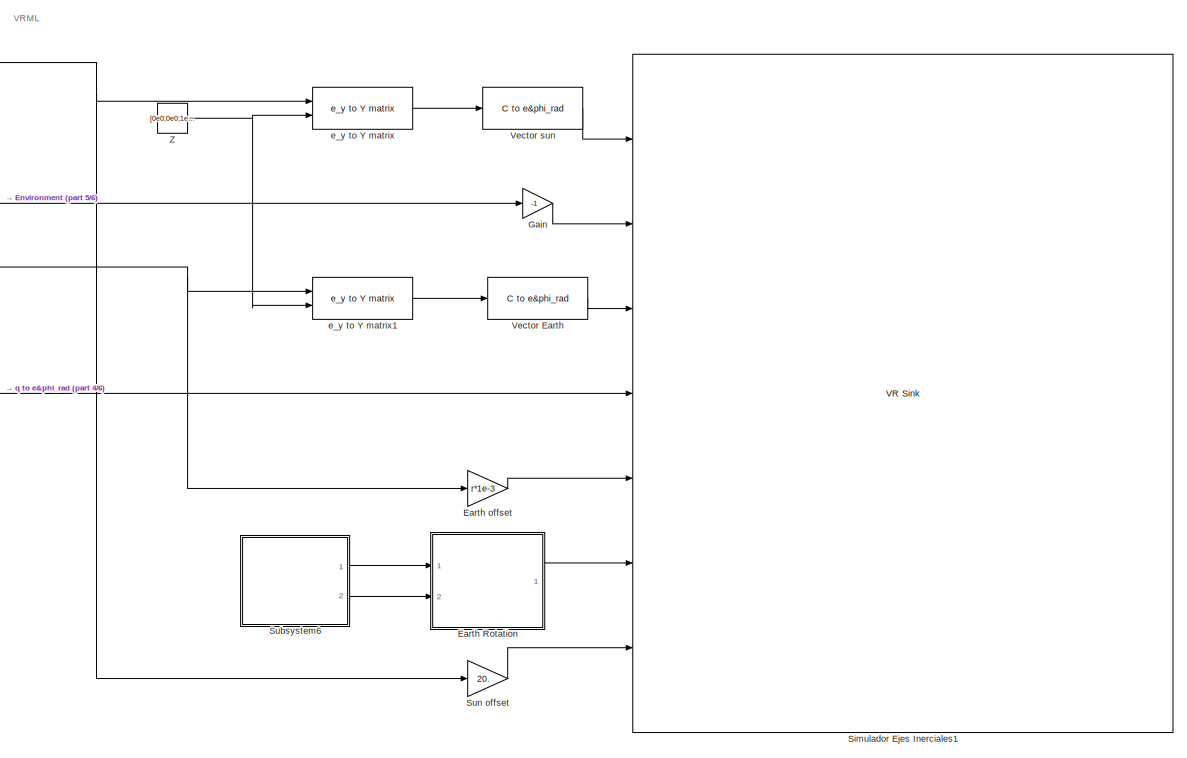
[diagram: root canvas - part 1/6, top right region]
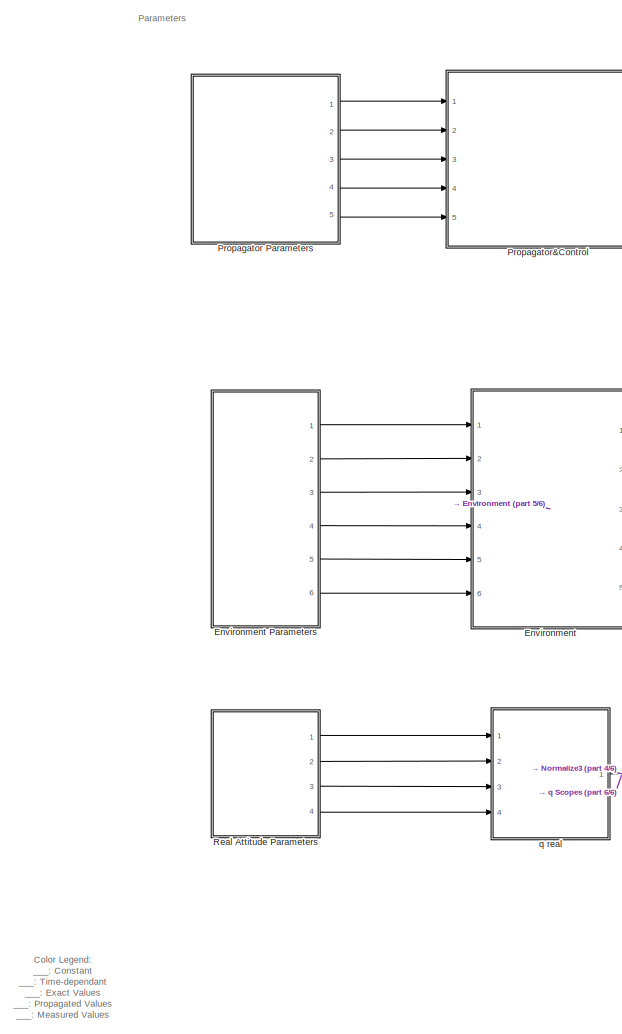
[diagram: root canvas - part 2/6, middle left region]
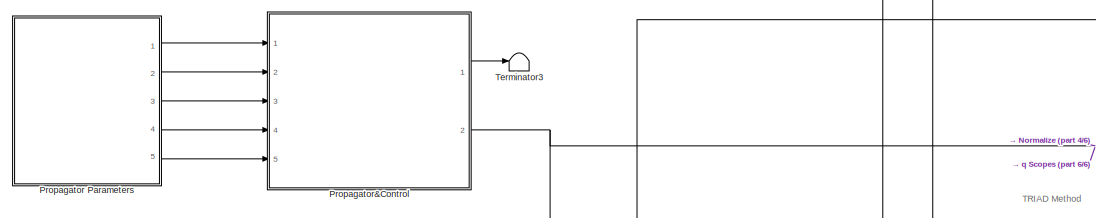
[diagram: root canvas - part 3/6, top left region]
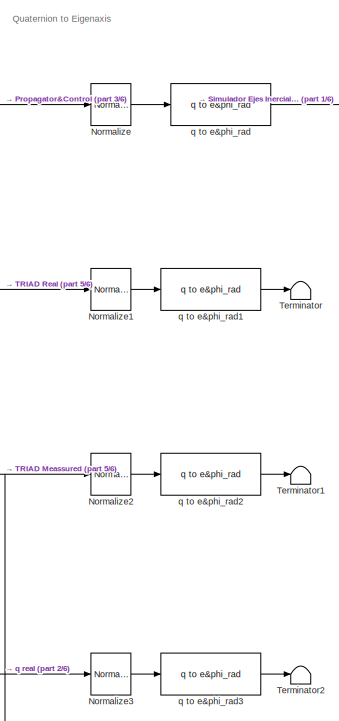
[diagram: root canvas - part 4/6, central region]
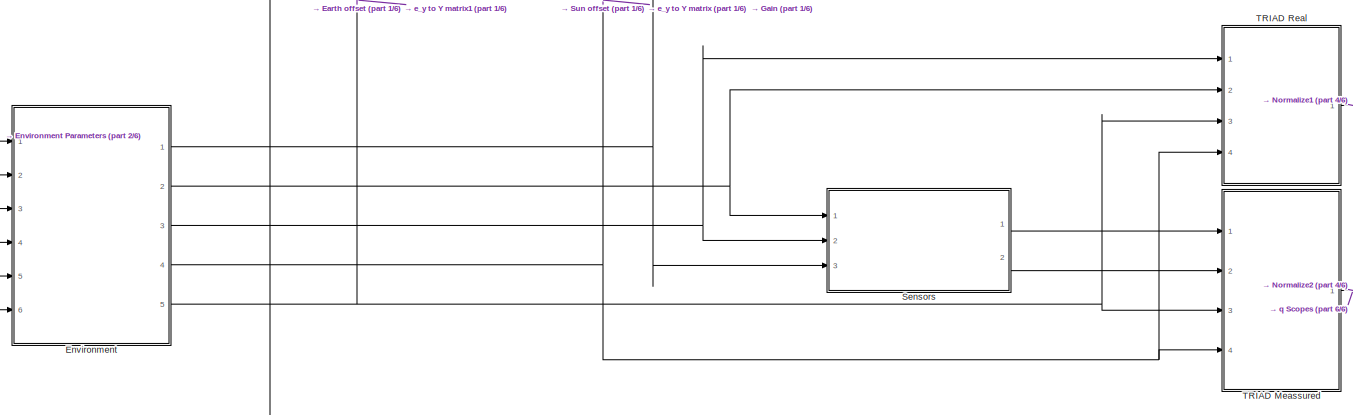
[diagram: root canvas - part 5/6, middle left region]
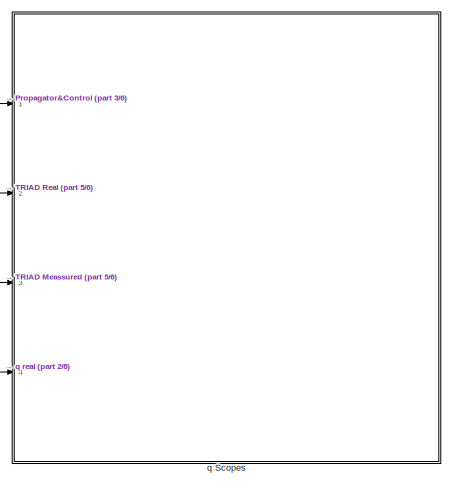
[diagram: root canvas - part 6/6, bottom right region]
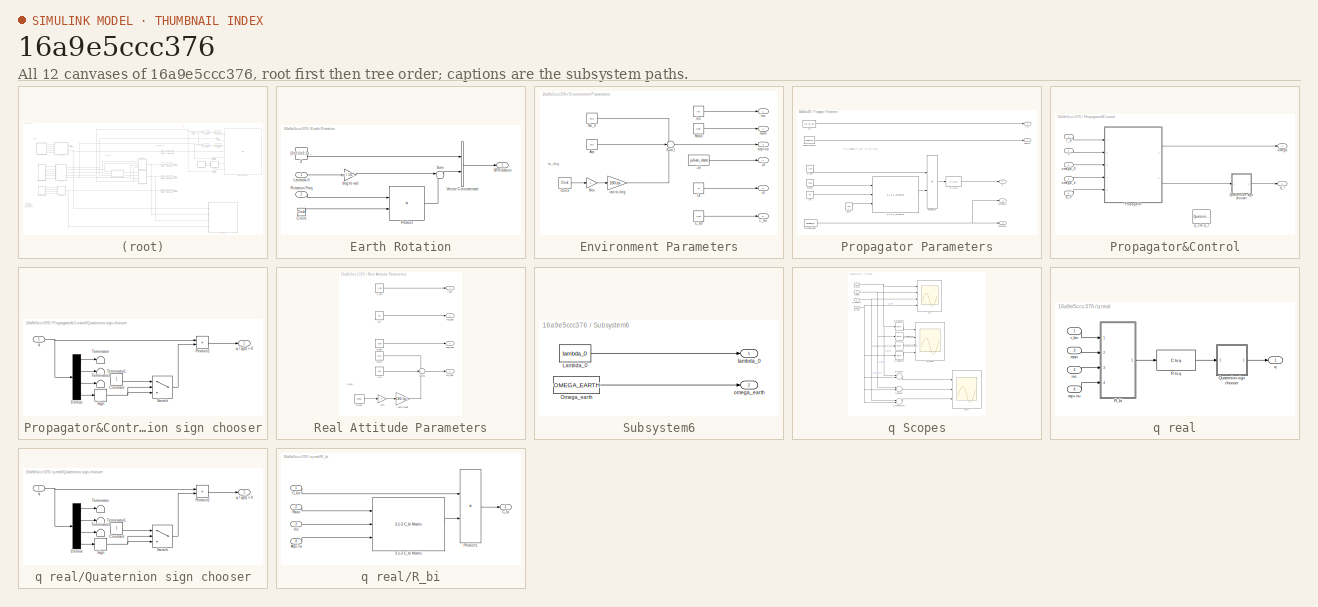
[diagram: thumbnail index - all 12 canvases of the model, root first then tree order]
MODEL slx_16a9e5ccc376
KIND model
CONFIG AbsTol = auto
CONFIG EnableMultiTasking = off
CONFIG FixedStep = 100
CONFIG InitFcn = data
CONFIG MaxStep = auto
CONFIG MinStep = auto
CONFIG RelTol = 1e-3
CONFIG SampleTimeConstraint = Unconstrained
CONFIG Solver = ode15s
CONFIG SolverName = ode15s
CONFIG StartTime = 0.0
CONFIG StopTime = tf
BLOCK [SubSystem] Earth Rotation
  Ports = [2, 1]
  RequestExecContextInheritance = off
BLOCK [Clock] Earth Rotation/Clock
BLOCK [Inport] Earth Rotation/Lambda 0
  IconDisplay = Port number
BLOCK [Product] Earth Rotation/Product
  InputSameDT = off
  OutDataTypeStr = Inherit: Inherit via internal rule
  Ports = [2, 1]
  RndMeth = Floor
  SaturateOnIntegerOverflow = off
BLOCK [Inport] Earth Rotation/Rotation Freq
  IconDisplay = Port number
  Port = 2
BLOCK [Outport] Earth Rotation/SFRotation
  IconDisplay = Port number
BLOCK [Sum] Earth Rotation/Sum
  IconShape = round
  InputSameDT = off
  Inputs = |++
  OutDataTypeStr = Inherit: Inherit via internal rule
  Ports = [2, 1]
  SaturateOnIntegerOverflow = off
BLOCK [Concatenate] Earth Rotation/Vector Concatenate
  Ports = [2, 1]
BLOCK [Constant] Earth Rotation/Z
  Value = [0e0;0e0;1e0]
BLOCK [Gain] Earth Rotation/deg to rad
  Gain = pi / 180.
  OutDataTypeStr = Inherit: Inherit via internal rule
  ParamDataTypeStr = Inherit: Inherit via internal rule
  SaturateOnIntegerOverflow = off
BLOCK [Gain] Earth offset
  Gain = r*1e-3
  OutDataTypeStr = Inherit: Inherit via internal rule
  ParamDataTypeStr = Inherit: Inherit via internal rule
  SaturateOnIntegerOverflow = off
BLOCK [SubSystem] Environment
  BlockKeywords = __PRM__SERIALIZED__DATA__:SubsystemReferenceBlock
  Ports = [6, 5]
  ReferencedSubsystem = block_environment
  RequestExecContextInheritance = off
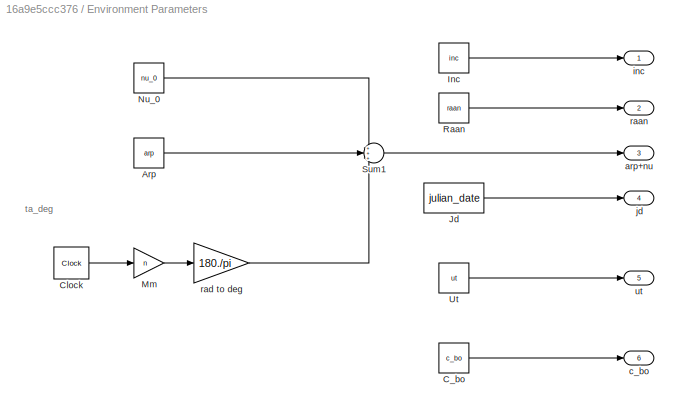
BLOCK [SubSystem] Environment Parameters
  Ports = [0, 6]
  RequestExecContextInheritance = off
BLOCK [Constant] Environment Parameters/Arp
  Value = arp
BLOCK [Constant] Environment Parameters/C_bo
  Value = c_bo
BLOCK [Clock] Environment Parameters/Clock
BLOCK [Constant] Environment Parameters/Inc
  Value = inc
BLOCK [Constant] Environment Parameters/Jd
  Value = julian_date
BLOCK [Gain] Environment Parameters/Mm
  Gain = n
  OutDataTypeStr = Inherit: Inherit via internal rule
  ParamDataTypeStr = Inherit: Inherit via internal rule
  SaturateOnIntegerOverflow = off
BLOCK [Constant] Environment Parameters/Nu_0
  Value = nu_0
BLOCK [Constant] Environment Parameters/Raan
  Value = raan
BLOCK [Sum] Environment Parameters/Sum1
  IconShape = round
  InputSameDT = off
  Inputs = +++
  OutDataTypeStr = Inherit: Inherit via internal rule
  Ports = [3, 1]
  SaturateOnIntegerOverflow = off
BLOCK [Constant] Environment Parameters/Ut
  Value = ut
BLOCK [Outport] Environment Parameters/arp+nu
  IconDisplay = Port number
  Port = 3
BLOCK [Outport] Environment Parameters/c_bo
  IconDisplay = Port number
  Port = 6
BLOCK [Outport] Environment Parameters/inc
  IconDisplay = Port number
BLOCK [Outport] Environment Parameters/jd
  IconDisplay = Port number
  Port = 4
BLOCK [Outport] Environment Parameters/raan
  IconDisplay = Port number
  Port = 2
BLOCK [Gain] Environment Parameters/rad to deg
  Gain = 180./pi
  OutDataTypeStr = Inherit: Inherit via internal rule
  ParamDataTypeStr = Inherit: Inherit via internal rule
  SaturateOnIntegerOverflow = off
BLOCK [Outport] Environment Parameters/ut
  IconDisplay = Port number
  Port = 5
BLOCK [Gain] Gain
  Gain = -1
  OutDataTypeStr = Inherit: Inherit via internal rule
  ParamDataTypeStr = Inherit: Inherit via internal rule
  SaturateOnIntegerOverflow = off
BLOCK [Reference] Normalize  REF=blocklib/Normalize  (lib defined in mdl_0f6d77dcc548, slx_4f395834c8e9, +4 more)
  Ports = [1, 1]
  SourceBlock = blocklib/Normalize
  SourceProductName = Custom Library
BLOCK [Reference] Normalize1  REF=blocklib/Normalize  (lib defined in mdl_0f6d77dcc548, slx_4f395834c8e9, +4 more)
  Ports = [1, 1]
  SourceBlock = blocklib/Normalize
  SourceProductName = Custom Library
BLOCK [Reference] Normalize2  REF=blocklib/Normalize  (lib defined in mdl_0f6d77dcc548, slx_4f395834c8e9, +4 more)
  Ports = [1, 1]
  SourceBlock = blocklib/Normalize
  SourceProductName = Custom Library
BLOCK [Reference] Normalize3  REF=blocklib/Normalize  (lib defined in mdl_0f6d77dcc548, slx_4f395834c8e9, +4 more)
  Ports = [1, 1]
  SourceBlock = blocklib/Normalize
  SourceProductName = Custom Library
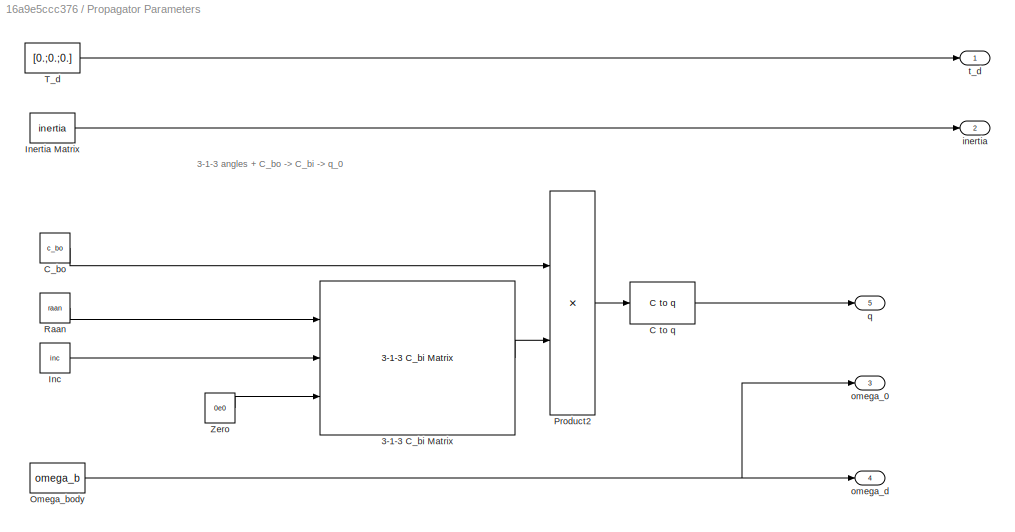
BLOCK [SubSystem] Propagator Parameters
  Ports = [0, 5]
  RequestExecContextInheritance = off
BLOCK [Reference] Propagator Parameters/3-1-3 C_bi Matrix  REF=blocklib/3-1-3 C_bi Matrix  (lib defined in mdl_0f6d77dcc548, slx_4f395834c8e9, +4 more)
  Ports = [3, 1]
  SourceBlock = blocklib/3-1-3 C_bi Matrix
  SourceProductName = Custom Library
BLOCK [Reference] Propagator Parameters/C to q  REF=blocklib/C to q  (lib defined in mdl_0f6d77dcc548, slx_4f395834c8e9, +4 more)
  Ports = [1, 1]
  SourceBlock = blocklib/C to q
  SourceProductName = Custom Library
BLOCK [Constant] Propagator Parameters/C_bo
  Value = c_bo
BLOCK [Constant] Propagator Parameters/Inc
  Value = inc
BLOCK [Constant] Propagator Parameters/Inertia Matrix
  Value = inertia
BLOCK [Constant] Propagator Parameters/Omega_body
  Value = omega_b
BLOCK [Product] Propagator Parameters/Product2
  InputSameDT = off
  Multiplication = Matrix(*)
  OutDataTypeStr = Inherit: Inherit via internal rule
  Ports = [2, 1]
  RndMeth = Floor
  SaturateOnIntegerOverflow = off
BLOCK [Constant] Propagator Parameters/Raan
  Value = raan
BLOCK [Constant] Propagator Parameters/T_d
  Value = [0.;0.;0.]
BLOCK [Constant] Propagator Parameters/Zero
  Value = 0e0
BLOCK [Outport] Propagator Parameters/inertia
  IconDisplay = Port number
  Port = 2
BLOCK [Outport] Propagator Parameters/omega_0
  IconDisplay = Port number
  Port = 3
BLOCK [Outport] Propagator Parameters/omega_d
  IconDisplay = Port number
  Port = 4
BLOCK [Outport] Propagator Parameters/q
  IconDisplay = Port number
  Port = 5
BLOCK [Outport] Propagator Parameters/t_d
  IconDisplay = Port number
BLOCK [SubSystem] Propagator&Control
  Ports = [5, 2]
  RequestExecContextInheritance = off
BLOCK [Inport] Propagator&Control/I
  IconDisplay = Port number
  Port = 2
BLOCK [ModelReference] Propagator&Control/Propagator
  ModelNameDialog = block_propagator
  ModelReferenceVersion = 1.56
  Ports = [5, 2]
BLOCK [SubSystem] Propagator&Control/Quaternion sign chooser
  Ports = [1, 1]
  RequestExecContextInheritance = off
BLOCK [Constant] Propagator&Control/Quaternion sign chooser/Constant
BLOCK [Demux] Propagator&Control/Quaternion sign chooser/Demux
  DisplayOption = bar
  Ports = [1, 4]
BLOCK [Product] Propagator&Control/Quaternion sign chooser/Product2
  InputSameDT = off
  OutDataTypeStr = Inherit: Inherit via internal rule
  Ports = [2, 1]
  RndMeth = Floor
  SaturateOnIntegerOverflow = off
BLOCK [Signum] Propagator&Control/Quaternion sign chooser/Sign
BLOCK [Switch] Propagator&Control/Quaternion sign chooser/Switch
  InputSameDT = off
  SaturateOnIntegerOverflow = off
BLOCK [Terminator] Propagator&Control/Quaternion sign chooser/Terminator
BLOCK [Terminator] Propagator&Control/Quaternion sign chooser/Terminator1
BLOCK [Terminator] Propagator&Control/Quaternion sign chooser/Terminator2
BLOCK [Inport] Propagator&Control/Quaternion sign chooser/q
  IconDisplay = Port number
BLOCK [Outport] Propagator&Control/Quaternion sign chooser/q // q(4) > 0
  IconDisplay = Port number
BLOCK [Inport] Propagator&Control/T_d
  IconDisplay = Port number
BLOCK [Outport] Propagator&Control/omega
  IconDisplay = Port number
  VectorParamsAs1DForOutWhenUnconnected = off
BLOCK [Inport] Propagator&Control/omega_0
  IconDisplay = Port number
  Port = 3
BLOCK [Inport] Propagator&Control/omega_d
  IconDisplay = Port number
  Port = 4
BLOCK [Inport] Propagator&Control/q_0
  IconDisplay = Port number
  Port = 5
BLOCK [Reference] Propagator&Control/q_c to q_r  REF=blocklib/Quaternion Conj  (lib defined in mdl_0f6d77dcc548, slx_4f395834c8e9, +4 more)
  Commented = on
  Ports = [1, 1]
  SourceBlock = blocklib/Quaternion Conj
  SourceProductName = Custom Library
BLOCK [Outport] Propagator&Control/q_r
  IconDisplay = Port number
  Port = 2
  VectorParamsAs1DForOutWhenUnconnected = off
BLOCK [SubSystem] Real Attitude Parameters
  Ports = [0, 4]
  RequestExecContextInheritance = off
BLOCK [Constant] Real Attitude Parameters/Arp
  Value = arp
BLOCK [Constant] Real Attitude Parameters/C_bo
  Value = c_bo
BLOCK [Clock] Real Attitude Parameters/Clock
BLOCK [Constant] Real Attitude Parameters/Inc
  Value = inc
BLOCK [Gain] Real Attitude Parameters/Mm
  Gain = n
  OutDataTypeStr = Inherit: Inherit via internal rule
  ParamDataTypeStr = Inherit: Inherit via internal rule
  SaturateOnIntegerOverflow = off
BLOCK [Constant] Real Attitude Parameters/Nu_0
  Value = nu_0
BLOCK [Constant] Real Attitude Parameters/Raan
  Value = raan
BLOCK [Sum] Real Attitude Parameters/Sum1
  IconShape = round
  InputSameDT = off
  Inputs = +++
  OutDataTypeStr = Inherit: Inherit via internal rule
  Ports = [3, 1]
  SaturateOnIntegerOverflow = off
BLOCK [Outport] Real Attitude Parameters/arp_deg
  IconDisplay = Port number
  Port = 4
BLOCK [Outport] Real Attitude Parameters/inc_deg
  IconDisplay = Port number
  Port = 2
BLOCK [Outport] Real Attitude Parameters/r_bo
  IconDisplay = Port number
BLOCK [Outport] Real Attitude Parameters/raan_deg
  IconDisplay = Port number
  Port = 3
BLOCK [Gain] Real Attitude Parameters/rad to deg
  Gain = 180./pi
  OutDataTypeStr = Inherit: Inherit via internal rule
  ParamDataTypeStr = Inherit: Inherit via internal rule
  SaturateOnIntegerOverflow = off
BLOCK [SubSystem] Sensors
  BlockKeywords = __PRM__SERIALIZED__DATA__:SubsystemReferenceBlock
  Ports = [3, 2]
  ReferencedSubsystem = block_sensors
  RequestExecContextInheritance = off
BLOCK [Reference] Simulador Ejes Inerciales1  REF=vrlib/VR Sink
  InstantiateOnLoad = on
  Ports = [7]
  SourceBlock = vrlib/VR Sink
  SourceProductBaseCode = VR
  SourceProductName = Simulink 3D Animation
  SourceType = Virtual Reality Sink
BLOCK [SubSystem] Subsystem6
  Ports = [0, 2]
  RequestExecContextInheritance = off
BLOCK [Constant] Subsystem6/Lambda_0
  Value = lambda_0
BLOCK [Constant] Subsystem6/Omega_earth
  Value = OMEGA_EARTH
BLOCK [Outport] Subsystem6/lambda_0
  IconDisplay = Port number
BLOCK [Outport] Subsystem6/omega_earth
  IconDisplay = Port number
  Port = 2
BLOCK [Gain] Sun offset
  Gain = 20.
  OutDataTypeStr = Inherit: Inherit via internal rule
  ParamDataTypeStr = Inherit: Inherit via internal rule
  SaturateOnIntegerOverflow = off
BLOCK [SubSystem] TRIAD Meassured
  BlockKeywords = __PRM__SERIALIZED__DATA__:SubsystemReferenceBlock
  Ports = [4, 1]
  ReferencedSubsystem = block_triad
  RequestExecContextInheritance = off
BLOCK [SubSystem] TRIAD Real
  BlockKeywords = __PRM__SERIALIZED__DATA__:SubsystemReferenceBlock
  Ports = [4, 1]
  ReferencedSubsystem = block_triad
  RequestExecContextInheritance = off
BLOCK [Terminator] Terminator
BLOCK [Terminator] Terminator1
BLOCK [Terminator] Terminator2
BLOCK [Terminator] Terminator3
BLOCK [Reference] Vector Earth  REF=blocklib/C to e&phi_rad  (lib defined in mdl_0f6d77dcc548, slx_4f395834c8e9, +4 more)
  Ports = [1, 1]
  SourceBlock = blocklib/C to e&phi_rad
  SourceProductName = Custom Library
BLOCK [Reference] Vector sun  REF=blocklib/C to e&phi_rad  (lib defined in mdl_0f6d77dcc548, slx_4f395834c8e9, +4 more)
  Ports = [1, 1]
  SourceBlock = blocklib/C to e&phi_rad
  SourceProductName = Custom Library
BLOCK [Constant] Z
  Value = [0e0;0e0;1e0]
BLOCK [Reference] e_y to Y matrix  REF=blocklib/e_y to Y matrix  (lib defined in mdl_0f6d77dcc548, slx_4f395834c8e9, +4 more)
  Ports = [2, 1]
  SourceBlock = blocklib/e_y to Y matrix
  SourceProductName = Custom Library
BLOCK [Reference] e_y to Y matrix1  REF=blocklib/e_y to Y matrix  (lib defined in mdl_0f6d77dcc548, slx_4f395834c8e9, +4 more)
  Ports = [2, 1]
  SourceBlock = blocklib/e_y to Y matrix
  SourceProductName = Custom Library
BLOCK [SubSystem] q Scopes
  Ports = [4]
  RequestExecContextInheritance = off
BLOCK [Scope] q Scopes/q_err
  Floating = off
  NumInputPorts = 3
  Ports = [3]
  ScopeSpecificationString = Simulink.scopes.TimeScopeBlockCfg('CurrentConfiguration', extmgr.ConfigurationSet(extmgr.Configuration('Core','General UI',true),extmgr.Configuration('Core','Source UI',true),extmgr.Configuration('Sources','WiredSimulink',true,'DataLoggingVariableName','ScopeData5'),extmgr.Configuration('Visuals','Time Domain',true,'SerializedDisplays',{struct('MinYLimReal','-1.7982','MaxYLimReal','1.25717','YLabe...<+2987ch>
BLOCK [Scope] q Scopes/q_norms
  Floating = off
  NumInputPorts = 4
  Ports = [4]
  ScopeSpecificationString = Simulink.scopes.TimeScopeBlockCfg('CurrentConfiguration', extmgr.ConfigurationSet(extmgr.Configuration('Core','General UI',true),extmgr.Configuration('Core','Source UI',true),extmgr.Configuration('Sources','WiredSimulink',true,'DataLoggingVariableName','ScopeData4'),extmgr.Configuration('Visuals','Time Domain',true,'SerializedDisplays',{struct('MinYLimReal','0.999967','MaxYLimReal','1.000004','YLa...<+3499ch>
BLOCK [Inport] q Scopes/q_prop
  IconDisplay = Port number
BLOCK [Sum] q Scopes/q_prop err
  InputSameDT = off
  Inputs = +-
  OutDataTypeStr = Inherit: Inherit via internal rule
  Ports = [2, 1]
  SaturateOnIntegerOverflow = off
BLOCK [Reference] q Scopes/q_prop norm  REF=blocklib/Norm  (lib defined in mdl_0f6d77dcc548, slx_4f395834c8e9, +4 more)
  Ports = [1, 1]
  SourceBlock = blocklib/Norm
  SourceProductName = Custom Library
BLOCK [Inport] q Scopes/q_real
  IconDisplay = Port number
  Port = 4
BLOCK [Reference] q Scopes/q_real norm  REF=blocklib/Norm  (lib defined in mdl_0f6d77dcc548, slx_4f395834c8e9, +4 more)
  Ports = [1, 1]
  SourceBlock = blocklib/Norm
  SourceProductName = Custom Library
BLOCK [Scope] q Scopes/q_s
  Floating = off
  NumInputPorts = 4
  Ports = [4]
  ScopeSpecificationString = Simulink.scopes.TimeScopeBlockCfg('CurrentConfiguration', extmgr.ConfigurationSet(extmgr.Configuration('Core','General UI',true),extmgr.Configuration('Core','Source UI',true),extmgr.Configuration('Sources','WiredSimulink',true),extmgr.Configuration('Visuals','Time Domain',true,'SerializedDisplays',{struct('MinYLimReal','-0.57123','MaxYLimReal','1.04692','YLabelReal','','MinYLimMag','0.00000','MaxY...<+3963ch>
BLOCK [Inport] q Scopes/q_sensors
  IconDisplay = Port number
  Port = 3
BLOCK [Sum] q Scopes/q_sensors err
  InputSameDT = off
  Inputs = +-
  OutDataTypeStr = Inherit: Inherit via internal rule
  Ports = [2, 1]
  SaturateOnIntegerOverflow = off
BLOCK [Reference] q Scopes/q_sensors norm  REF=blocklib/Norm  (lib defined in mdl_0f6d77dcc548, slx_4f395834c8e9, +4 more)
  Ports = [1, 1]
  SourceBlock = blocklib/Norm
  SourceProductName = Custom Library
BLOCK [Inport] q Scopes/q_triad
  IconDisplay = Port number
  Port = 2
BLOCK [Sum] q Scopes/q_triad err
  InputSameDT = off
  Inputs = +-
  OutDataTypeStr = Inherit: Inherit via internal rule
  Ports = [2, 1]
  SaturateOnIntegerOverflow = off
BLOCK [Reference] q Scopes/q_triad norm  REF=blocklib/Norm  (lib defined in mdl_0f6d77dcc548, slx_4f395834c8e9, +4 more)
  Ports = [1, 1]
  SourceBlock = blocklib/Norm
  SourceProductName = Custom Library
BLOCK [SubSystem] q real
  Ports = [4, 1]
  RequestExecContextInheritance = off
BLOCK [SubSystem] q real/Quaternion sign chooser
  Ports = [1, 1]
  RequestExecContextInheritance = off
BLOCK [Constant] q real/Quaternion sign chooser/Constant
BLOCK [Demux] q real/Quaternion sign chooser/Demux
  DisplayOption = bar
  Ports = [1, 4]
BLOCK [Product] q real/Quaternion sign chooser/Product2
  InputSameDT = off
  OutDataTypeStr = Inherit: Inherit via internal rule
  Ports = [2, 1]
  RndMeth = Floor
  SaturateOnIntegerOverflow = off
BLOCK [Signum] q real/Quaternion sign chooser/Sign
BLOCK [Switch] q real/Quaternion sign chooser/Switch
  InputSameDT = off
  SaturateOnIntegerOverflow = off
BLOCK [Terminator] q real/Quaternion sign chooser/Terminator
BLOCK [Terminator] q real/Quaternion sign chooser/Terminator1
BLOCK [Terminator] q real/Quaternion sign chooser/Terminator2
BLOCK [Inport] q real/Quaternion sign chooser/q
  IconDisplay = Port number
BLOCK [Outport] q real/Quaternion sign chooser/q // q(4) > 0
  IconDisplay = Port number
BLOCK [Reference] q real/R to q  REF=blocklib/C to q  (lib defined in mdl_0f6d77dcc548, slx_4f395834c8e9, +4 more)
  Ports = [1, 1]
  SourceBlock = blocklib/C to q
  SourceProductName = Custom Library
BLOCK [SubSystem] q real/R_bi
  Ports = [4, 1]
  RequestExecContextInheritance = off
BLOCK [Reference] q real/R_bi/3-1-3 C_bi Matrix  REF=blocklib/3-1-3 C_bi Matrix  (lib defined in mdl_0f6d77dcc548, slx_4f395834c8e9, +4 more)
  Ports = [3, 1]
  SourceBlock = blocklib/3-1-3 C_bi Matrix
  SourceProductName = Custom Library
BLOCK [Inport] q real/R_bi/Arp+Ta
  IconDisplay = Port number
  Port = 4
BLOCK [Outport] q real/R_bi/C_bi
  IconDisplay = Port number
BLOCK [Inport] q real/R_bi/C_bo
  IconDisplay = Port number
BLOCK [Inport] q real/R_bi/Inc
  IconDisplay = Port number
  Port = 3
BLOCK [Product] q real/R_bi/Product1
  InputSameDT = off
  Multiplication = Matrix(*)
  OutDataTypeStr = Inherit: Inherit via internal rule
  Ports = [2, 1]
  RndMeth = Floor
  SaturateOnIntegerOverflow = off
BLOCK [Inport] q real/R_bi/Raan
  IconDisplay = Port number
  Port = 2
BLOCK [Inport] q real/arp+nu
  IconDisplay = Port number
  Port = 4
BLOCK [Inport] q real/inc
  IconDisplay = Port number
  Port = 2
BLOCK [Outport] q real/q
  IconDisplay = Port number
BLOCK [Inport] q real/r_bo
  IconDisplay = Port number
BLOCK [Inport] q real/raan
  IconDisplay = Port number
  Port = 3
BLOCK [Reference] q to e&phi_rad  REF=blocklib/q to e&phi_rad  (lib defined in mdl_0f6d77dcc548, slx_4f395834c8e9, +4 more)
  Ports = [1, 1]
  SourceBlock = blocklib/q to e&phi_rad
  SourceProductName = Custom Library
BLOCK [Reference] q to e&phi_rad1  REF=blocklib/q to e&phi_rad  (lib defined in mdl_0f6d77dcc548, slx_4f395834c8e9, +4 more)
  Ports = [1, 1]
  SourceBlock = blocklib/q to e&phi_rad
  SourceProductName = Custom Library
BLOCK [Reference] q to e&phi_rad2  REF=blocklib/q to e&phi_rad  (lib defined in mdl_0f6d77dcc548, slx_4f395834c8e9, +4 more)
  Ports = [1, 1]
  SourceBlock = blocklib/q to e&phi_rad
  SourceProductName = Custom Library
BLOCK [Reference] q to e&phi_rad3  REF=blocklib/q to e&phi_rad  (lib defined in mdl_0f6d77dcc548, slx_4f395834c8e9, +4 more)
  Ports = [1, 1]
  SourceBlock = blocklib/q to e&phi_rad
  SourceProductName = Custom Library
ANNOTATION (root): Color Legend: ___ : Constant ___ : Time-dependant ___ : Exact Values ___ : Propagated Values ___ : Measured Values ___ : Outputs
ANNOTATION (root): Parameters
ANNOTATION (root): Quaternion to Eigenaxis
ANNOTATION (root): TRIAD Method
ANNOTATION (root): VRML
ANNOTATION Environment Parameters: ta_deg
ANNOTATION Propagator Parameters: 3-1-3 angles + C_bo -> C_bi -> q_0
ANNOTATION Real Attitude Parameters: ta_deg
LINE Earth Rotation/Clock:1 -> Earth Rotation/Product:2
LINE Earth Rotation/Lambda 0:1 -> Earth Rotation/deg to rad:1
LINE Earth Rotation/Product:1 -> Earth Rotation/Sum:2
LINE Earth Rotation/Rotation Freq:1 -> Earth Rotation/Product:1
LINE Earth Rotation/Sum:1 -> Earth Rotation/Vector Concatenate:2
LINE Earth Rotation/Vector Concatenate:1 -> Earth Rotation/SFRotation:1
LINE Earth Rotation/Z:1 -> Earth Rotation/Vector Concatenate:1
LINE Earth Rotation/deg to rad:1 -> Earth Rotation/Sum:1
LINE Earth Rotation:1 -> Simulador Ejes Inerciales1:6
LINE Earth offset:1 -> Simulador Ejes Inerciales1:5
LINE Environment Parameters/Arp:1 -> Environment Parameters/Sum1:2
LINE Environment Parameters/C_bo:1 -> Environment Parameters/c_bo:1
LINE Environment Parameters/Clock:1 -> Environment Parameters/Mm:1
LINE Environment Parameters/Inc:1 -> Environment Parameters/inc:1
LINE Environment Parameters/Jd:1 -> Environment Parameters/jd:1
LINE Environment Parameters/Mm:1 -> Environment Parameters/rad to deg:1
LINE Environment Parameters/Nu_0:1 -> Environment Parameters/Sum1:1
LINE Environment Parameters/Raan:1 -> Environment Parameters/raan:1
LINE Environment Parameters/Sum1:1 -> Environment Parameters/arp+nu:1
LINE Environment Parameters/Ut:1 -> Environment Parameters/ut:1
LINE Environment Parameters/rad to deg:1 -> Environment Parameters/Sum1:3
LINE Environment Parameters:1 -> Environment:1
LINE Environment Parameters:2 -> Environment:2
LINE Environment Parameters:3 -> Environment:3
LINE Environment Parameters:4 -> Environment:4
LINE Environment Parameters:5 -> Environment:5
LINE Environment Parameters:6 -> Environment:6
NET Environment:1 -> Gain:1, Sensors:3
NET Environment:2 -> Sensors:1, TRIAD Real:2
NET Environment:3 -> Sensors:2, TRIAD Real:1
NET Environment:4 -> Sun offset:1, TRIAD Meassured:4, TRIAD Real:4, e_y to Y matrix:1
NET Environment:5 -> Earth offset:1, TRIAD Meassured:3, TRIAD Real:3, e_y to Y matrix1:1
LINE Gain:1 -> Simulador Ejes Inerciales1:2
LINE Normalize1:1 -> q to e&phi_rad1:1
LINE Normalize2:1 -> q to e&phi_rad2:1
LINE Normalize3:1 -> q to e&phi_rad3:1
LINE Normalize:1 -> q to e&phi_rad:1
LINE Propagator Parameters/3-1-3 C_bi Matrix:1 -> Propagator Parameters/Product2:2
LINE Propagator Parameters/C to q:1 -> Propagator Parameters/q:1
LINE Propagator Parameters/C_bo:1 -> Propagator Parameters/Product2:1
LINE Propagator Parameters/Inc:1 -> Propagator Parameters/3-1-3 C_bi Matrix:2
LINE Propagator Parameters/Inertia Matrix:1 -> Propagator Parameters/inertia:1
NET Propagator Parameters/Omega_body:1 -> Propagator Parameters/omega_0:1, Propagator Parameters/omega_d:1
LINE Propagator Parameters/Product2:1 -> Propagator Parameters/C to q:1
LINE Propagator Parameters/Raan:1 -> Propagator Parameters/3-1-3 C_bi Matrix:1
LINE Propagator Parameters/T_d:1 -> Propagator Parameters/t_d:1
LINE Propagator Parameters/Zero:1 -> Propagator Parameters/3-1-3 C_bi Matrix:3
LINE Propagator Parameters:1 -> Propagator&Control:1
LINE Propagator Parameters:2 -> Propagator&Control:2
LINE Propagator Parameters:3 -> Propagator&Control:3
LINE Propagator Parameters:4 -> Propagator&Control:4
LINE Propagator Parameters:5 -> Propagator&Control:5
LINE Propagator&Control/I:1 -> Propagator&Control/Propagator:2
LINE Propagator&Control/Propagator:1 -> Propagator&Control/omega:1
LINE Propagator&Control/Propagator:2 -> Propagator&Control/Quaternion sign chooser:1
LINE Propagator&Control/Quaternion sign chooser/Constant:1 -> Propagator&Control/Quaternion sign chooser/Switch:1
LINE Propagator&Control/Quaternion sign chooser/Demux:1 -> Propagator&Control/Quaternion sign chooser/Terminator:1
LINE Propagator&Control/Quaternion sign chooser/Demux:2 -> Propagator&Control/Quaternion sign chooser/Terminator1:1
LINE Propagator&Control/Quaternion sign chooser/Demux:3 -> Propagator&Control/Quaternion sign chooser/Terminator2:1
LINE Propagator&Control/Quaternion sign chooser/Demux:4 -> Propagator&Control/Quaternion sign chooser/Sign:1
LINE Propagator&Control/Quaternion sign chooser/Product2:1 -> Propagator&Control/Quaternion sign chooser/q // q(4) > 0:1
NET Propagator&Control/Quaternion sign chooser/Sign:1 -> Propagator&Control/Quaternion sign chooser/Switch:2, Propagator&Control/Quaternion sign chooser/Switch:3
LINE Propagator&Control/Quaternion sign chooser/Switch:1 -> Propagator&Control/Quaternion sign chooser/Product2:2
NET Propagator&Control/Quaternion sign chooser/q:1 -> Propagator&Control/Quaternion sign chooser/Demux:1, Propagator&Control/Quaternion sign chooser/Product2:1
LINE Propagator&Control/Quaternion sign chooser:1 -> Propagator&Control/q_r:1
LINE Propagator&Control/T_d:1 -> Propagator&Control/Propagator:1
LINE Propagator&Control/omega_0:1 -> Propagator&Control/Propagator:3
LINE Propagator&Control/omega_d:1 -> Propagator&Control/Propagator:4
LINE Propagator&Control/q_0:1 -> Propagator&Control/Propagator:5
LINE Propagator&Control:1 -> Terminator3:1
NET Propagator&Control:2 -> Normalize:1, q Scopes:1
LINE Real Attitude Parameters/Arp:1 -> Real Attitude Parameters/Sum1:2
LINE Real Attitude Parameters/C_bo:1 -> Real Attitude Parameters/r_bo:1
LINE Real Attitude Parameters/Clock:1 -> Real Attitude Parameters/Mm:1
LINE Real Attitude Parameters/Inc:1 -> Real Attitude Parameters/inc_deg:1
LINE Real Attitude Parameters/Mm:1 -> Real Attitude Parameters/rad to deg:1
LINE Real Attitude Parameters/Nu_0:1 -> Real Attitude Parameters/Sum1:1
LINE Real Attitude Parameters/Raan:1 -> Real Attitude Parameters/raan_deg:1
LINE Real Attitude Parameters/Sum1:1 -> Real Attitude Parameters/arp_deg:1
LINE Real Attitude Parameters/rad to deg:1 -> Real Attitude Parameters/Sum1:3
LINE Real Attitude Parameters:1 -> q real:1
LINE Real Attitude Parameters:2 -> q real:2
LINE Real Attitude Parameters:3 -> q real:3
LINE Real Attitude Parameters:4 -> q real:4
LINE Sensors:1 -> TRIAD Meassured:1
LINE Sensors:2 -> TRIAD Meassured:2
LINE Subsystem6/Lambda_0:1 -> Subsystem6/lambda_0:1
LINE Subsystem6/Omega_earth:1 -> Subsystem6/omega_earth:1
LINE Subsystem6:1 -> Earth Rotation:1
LINE Subsystem6:2 -> Earth Rotation:2
LINE Sun offset:1 -> Simulador Ejes Inerciales1:7
NET TRIAD Meassured:1 -> Normalize2:1, q Scopes:3
NET TRIAD Real:1 -> Normalize1:1, q Scopes:2
LINE Vector Earth:1 -> Simulador Ejes Inerciales1:3
LINE Vector sun:1 -> Simulador Ejes Inerciales1:1
NET Z:1 -> e_y to Y matrix1:2, e_y to Y matrix:2
LINE e_y to Y matrix1:1 -> Vector Earth:1
LINE e_y to Y matrix:1 -> Vector sun:1
LINE q Scopes/q_prop err:1 -> q Scopes/q_err:1
LINE q Scopes/q_prop norm:1 -> q Scopes/q_norms:1
NET q Scopes/q_prop:1 -> q Scopes/q_prop err:1, q Scopes/q_prop norm:1, q Scopes/q_s:1
LINE q Scopes/q_real norm:1 -> q Scopes/q_norms:4
NET q Scopes/q_real:1 -> q Scopes/q_prop err:2, q Scopes/q_real norm:1, q Scopes/q_s:4, q Scopes/q_sensors err:2, q Scopes/q_triad err:2
LINE q Scopes/q_sensors err:1 -> q Scopes/q_err:3
LINE q Scopes/q_sensors norm:1 -> q Scopes/q_norms:3
NET q Scopes/q_sensors:1 -> q Scopes/q_s:3, q Scopes/q_sensors err:1, q Scopes/q_sensors norm:1
LINE q Scopes/q_triad err:1 -> q Scopes/q_err:2
LINE q Scopes/q_triad norm:1 -> q Scopes/q_norms:2
NET q Scopes/q_triad:1 -> q Scopes/q_s:2, q Scopes/q_triad err:1, q Scopes/q_triad norm:1
LINE q real/Quaternion sign chooser/Constant:1 -> q real/Quaternion sign chooser/Switch:1
LINE q real/Quaternion sign chooser/Demux:1 -> q real/Quaternion sign chooser/Terminator:1
LINE q real/Quaternion sign chooser/Demux:2 -> q real/Quaternion sign chooser/Terminator1:1
LINE q real/Quaternion sign chooser/Demux:3 -> q real/Quaternion sign chooser/Terminator2:1
LINE q real/Quaternion sign chooser/Demux:4 -> q real/Quaternion sign chooser/Sign:1
LINE q real/Quaternion sign chooser/Product2:1 -> q real/Quaternion sign chooser/q // q(4) > 0:1
NET q real/Quaternion sign chooser/Sign:1 -> q real/Quaternion sign chooser/Switch:2, q real/Quaternion sign chooser/Switch:3
LINE q real/Quaternion sign chooser/Switch:1 -> q real/Quaternion sign chooser/Product2:2
NET q real/Quaternion sign chooser/q:1 -> q real/Quaternion sign chooser/Demux:1, q real/Quaternion sign chooser/Product2:1
LINE q real/Quaternion sign chooser:1 -> q real/q:1
LINE q real/R to q:1 -> q real/Quaternion sign chooser:1
LINE q real/R_bi/3-1-3 C_bi Matrix:1 -> q real/R_bi/Product1:2
LINE q real/R_bi/Arp+Ta:1 -> q real/R_bi/3-1-3 C_bi Matrix:3
LINE q real/R_bi/C_bo:1 -> q real/R_bi/Product1:1
LINE q real/R_bi/Inc:1 -> q real/R_bi/3-1-3 C_bi Matrix:2
LINE q real/R_bi/Product1:1 -> q real/R_bi/C_bi:1
LINE q real/R_bi/Raan:1 -> q real/R_bi/3-1-3 C_bi Matrix:1
LINE q real/R_bi:1 -> q real/R to q:1
LINE q real/arp+nu:1 -> q real/R_bi:4
LINE q real/inc:1 -> q real/R_bi:3
LINE q real/r_bo:1 -> q real/R_bi:1
LINE q real/raan:1 -> q real/R_bi:2
NET q real:1 -> Normalize3:1, q Scopes:4
LINE q to e&phi_rad1:1 -> Terminator:1
LINE q to e&phi_rad2:1 -> Terminator1:1
LINE q to e&phi_rad3:1 -> Terminator2:1
LINE q to e&phi_rad:1 -> Simulador Ejes Inerciales1:4
note: NET lines group one-source signal fan-out (src -> all destinations, sorted); 1:1 wires keep LINE
